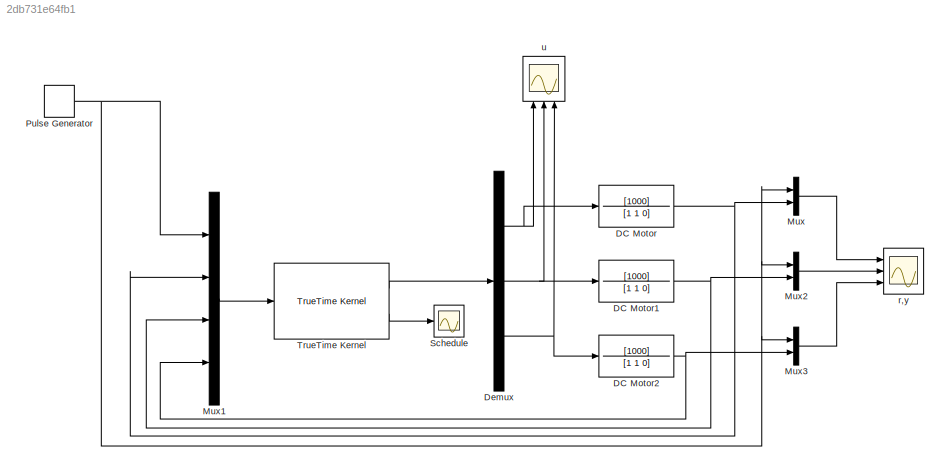
MODEL slx_2db731e64fb1
KIND model
CONFIG AbsTol = auto
CONFIG EnableMultiTasking = off
CONFIG FixedStep = auto
CONFIG MaxStep = auto
CONFIG MinStep = auto
CONFIG RelTol = 1e-3
CONFIG SampleTimeConstraint = Unconstrained
CONFIG Solver = VariableStepAuto
CONFIG SolverName = VariableStepAuto
CONFIG StartTime = 0.0
CONFIG StopTime = 0.1
BLOCK [TransferFcn] DC Motor
  Denominator = [1 1 0]
  Numerator = [1000]
BLOCK [TransferFcn] DC Motor1
  Denominator = [1 1 0]
  Numerator = [1000]
BLOCK [TransferFcn] DC Motor2
  Denominator = [1 1 0]
  Numerator = [1000]
BLOCK [Demux] Demux
  DisplayOption = bar
  Outputs = 3
  Ports = [1, 3]
BLOCK [Mux] Mux
  DisplayOption = bar
  Inputs = 2
  Ports = [2, 1]
BLOCK [Mux] Mux1
  DisplayOption = bar
  Ports = [4, 1]
BLOCK [Mux] Mux2
  DisplayOption = bar
  Inputs = 2
  Ports = [2, 1]
BLOCK [Mux] Mux3
  DisplayOption = bar
  Inputs = 2
  Ports = [2, 1]
BLOCK [DiscretePulseGenerator] Pulse Generator 
  Amplitude = 2
  Period = 1
  PhaseDelay = 0.1
  Ports = [0, 1]
  PulseType = Time based
  PulseWidth = 50
BLOCK [Scope] Schedule
  Floating = off
  NumInputPorts = 1
  Ports = [1]
  ScopeSpecificationString = Simulink.scopes.TimeScopeBlockCfg('CurrentConfiguration', extmgr.ConfigurationSet(extmgr.Configuration('Core','General UI',true),extmgr.Configuration('Core','Source UI',true),extmgr.Configuration('Sources','WiredSimulink',true,'DataLoggingVariableName','ScopeData1'),extmgr.Configuration('Visuals','Time Domain',true,'SerializedDisplays',{struct('MinYLimReal','0.6875','MaxYLimReal','3.8125','YLabelR...<+1876ch>
BLOCK [Reference] TrueTime Kernel   REF=truetime/TrueTime Kernel  (lib defined in slx_0362a698a4ec)
  Ports = [1, 2]
  SourceBlock = truetime/TrueTime Kernel
BLOCK [Scope] r,y
  Floating = off
  NumInputPorts = 3
  Ports = [3]
  ScopeSpecificationString = Simulink.scopes.TimeScopeBlockCfg('CurrentConfiguration', extmgr.ConfigurationSet(extmgr.Configuration('Core','General UI',true,'FigureColor',[0.156862745098039 0.156862745098039 0.156862745098039]),extmgr.Configuration('Core','Source UI',true),extmgr.Configuration('Sources','WiredSimulink',true,'DataLogging',true,'DataLoggingVariableName','ry1','DataLoggingSaveFormat','StructureWithTime','DataLog...<+5251ch>
BLOCK [Scope] u
  Floating = off
  NumInputPorts = 3
  Ports = [3]
  ScopeSpecificationString = Simulink.scopes.TimeScopeBlockCfg('CurrentConfiguration', extmgr.ConfigurationSet(extmgr.Configuration('Core','General UI',true,'FigureColor',[0.156862745098039 0.156862745098039 0.156862745098039]),extmgr.Configuration('Core','Source UI',true),extmgr.Configuration('Sources','WiredSimulink',true,'DataLoggingSaveFormat','StructureWithTime','DataLoggingDecimation','1','DataLoggingDecimateData',true,...<+5219ch>
NET DC Motor1:1 -> Mux1:3, Mux2:2
NET DC Motor2:1 -> Mux1:4, Mux3:2
NET DC Motor:1 -> Mux1:2, Mux:2
NET Demux:1 -> DC Motor:1, u:1
NET Demux:2 -> DC Motor1:1, u:2
NET Demux:3 -> DC Motor2:1, u:3
LINE Mux1:1 -> TrueTime Kernel :1
LINE Mux2:1 -> r,y:2
LINE Mux3:1 -> r,y:3
LINE Mux:1 -> r,y:1
NET Pulse Generator :1 -> Mux1:1, Mux2:1, Mux3:1, Mux:1
LINE TrueTime Kernel :1 -> Demux:1
LINE TrueTime Kernel :2 -> Schedule:1
note: NET lines group one-source signal fan-out (src -> all destinations, sorted); 1:1 wires keep LINE
